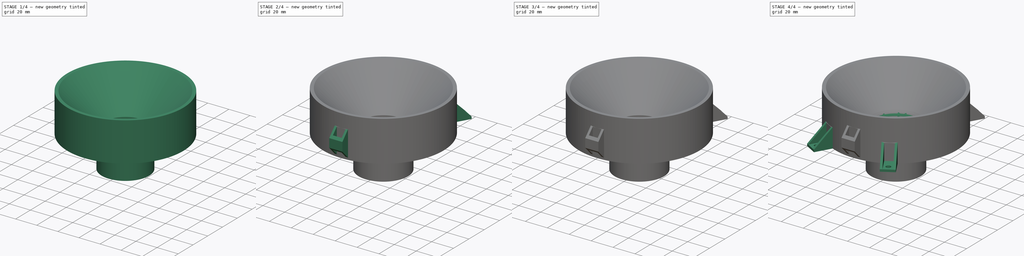
[diagram: build sequence overview — one tinted view per stage of 4, left to right]
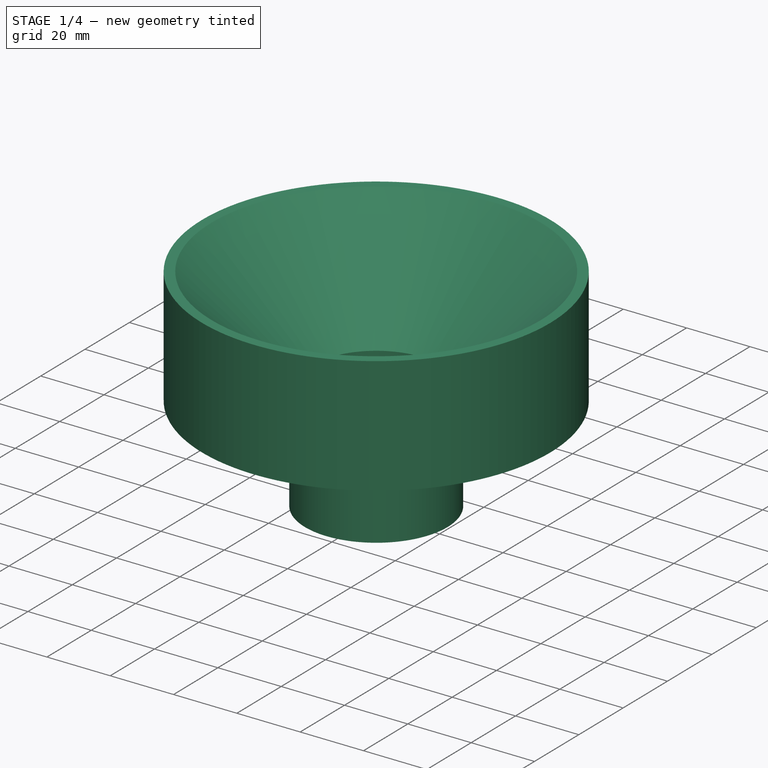
[diagram: stage 1 of 4 — iso view after this stage's code; geometry added in this stage tinted green]
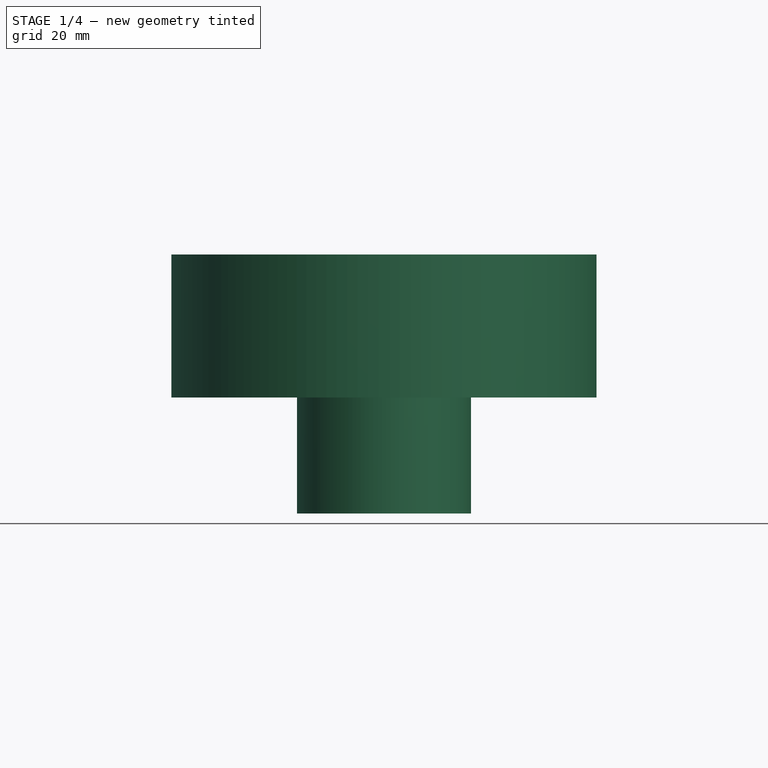
[diagram: stage 1 of 4 — front view after this stage's code; geometry added in this stage tinted green]
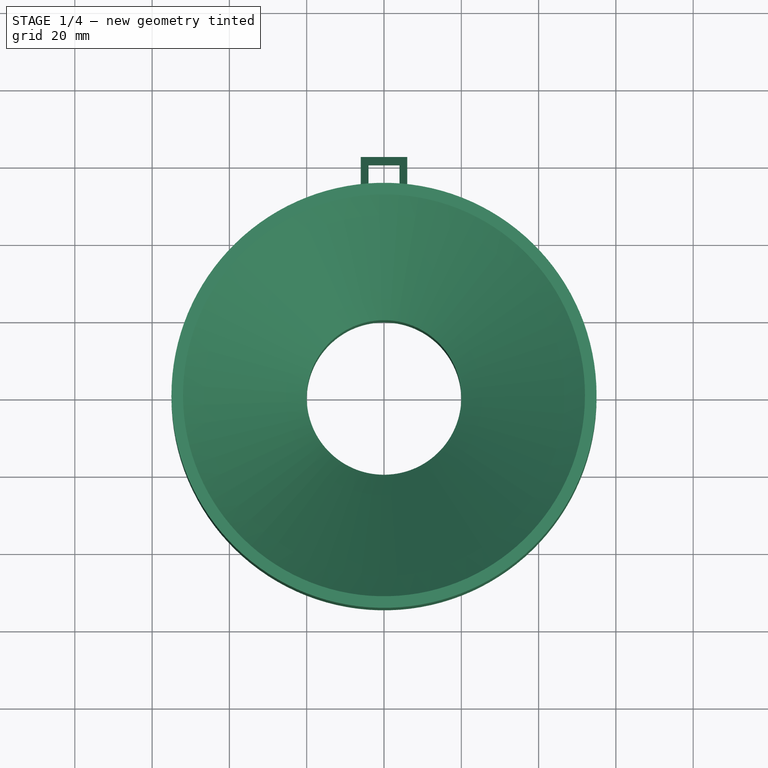
[diagram: stage 1 of 4 — top view after this stage's code; geometry added in this stage tinted green]
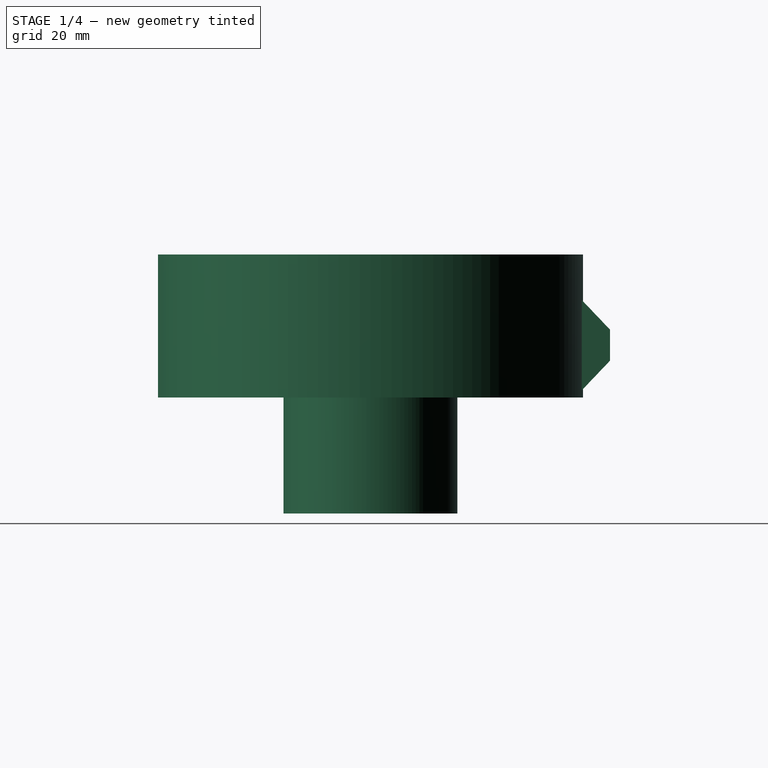
[diagram: stage 1 of 4 — right view after this stage's code; geometry added in this stage tinted green]
FCSTD DOCUMENT  (FreeCAD 0.19R24276 (Git))
Label: Trichter
License: All rights reserved
LicenseURL: http://en.wikipedia.org/wiki/All_rights_reserved
objects: Sketcher::SketchObject×6, PartDesign::PolarPattern×4, PartDesign::Pocket×3, PartDesign::Plane×2, PartDesign::Pad×2, PartDesign::Revolution×1, PartDesign::Fillet×1, PartDesign::Body×1
note: 27 computed .brp shape members not serialized (recipe doc carries the construction recipe); baked Part::Feature solids carry a one-line shape summary decoded from their .brp

FEATURE [Sketcher::SketchObject] Sketch
  FullyConstrained = true
  MapMode = 5
  Placement = pos=(0,0,0) rot=(1,0,0;1.5708rad)
  Support = -> [XZ_Plane]
  sketch-geometry (9):
    g0: LineSegment StartX=20 StartY=0 StartZ=0 EndX=20 EndY=5 EndZ=0
    g1: LineSegment StartX=55 StartY=37 StartZ=0 EndX=55 EndY=0 EndZ=0
    g2: LineSegment StartX=55 StartY=0 StartZ=0 EndX=20 EndY=0 EndZ=0
    g3: LineSegment StartX=20 StartY=5 StartZ=0 EndX=52 EndY=37 EndZ=0
    g4: LineSegment StartX=52 StartY=37 StartZ=0 EndX=55 EndY=37 EndZ=0
    g5: LineSegment StartX=20 StartY=5 StartZ=0 EndX=20 EndY=-30 EndZ=0
    g6: LineSegment StartX=20 StartY=-30 StartZ=0 EndX=22.5 EndY=-30 EndZ=0
    g7: LineSegment StartX=22.5 StartY=-30 StartZ=0 EndX=22.5 EndY=0 EndZ=0
    g8: LineSegment StartX=22.5 StartY=0 StartZ=0 EndX=55 EndY=0 EndZ=0
  constraints (26):
    c: PointOnObject(g0,g-1)
    c: Vertical(g0)
    c: PointOnObject(g1,g-1)
    c: Vertical(g1)
    c: Coincident(g1,g2)
    c: Coincident(g2,g0)
    c: DistanceX(g-1,g0) = 20
    c: DistanceY(g0,g0) = 5
    c: Coincident(g0,g3)
    c: Coincident(g3,g4)
    c: Coincident(g4,g1)
    c: Horizontal(g4)
    c: DistanceX(g3,g1) = 3
    c: DistanceX(g2,g2) = 35
    c: Angle(g2,g3) = 0.785398
    c: Coincident(g5,g3)
    c: Vertical(g5)
    c: Coincident(g5,g6)
    c: Horizontal(g6)
    c: Coincident(g6,g7)
    c: PointOnObject(g7,g2)
    c: Vertical(g7)
    c: Coincident(g7,g8)
    c: Coincident(g8,g1)
    c: DistanceX(g-1,g6) = 22.5
    c: DistanceY(g7,g7) = 30
FEATURE [PartDesign::Revolution] Revolution
  Angle = 360
  Axis = (0,2e-16,1)
  Base = (0,0,0)
  Placement = pos=(0,0,0) rot=(1,0,0;1.5708rad)
  Profile = -> Sketch
  ReferenceAxis = -> Sketch [V_Axis]
  Reversed = true
FEATURE [PartDesign::Plane] DatumPlane
  Length = 145.71
  MapMode = 5
  Placement = pos=(0,0,0) rot=(0.57735,0.57735,0.57735;2.0944rad)
  ResizeMode = 0
  Support = -> [YZ_Plane]
  Width = 85.4666
FEATURE [Sketcher::SketchObject] Sketch002
  FullyConstrained = true
  MapMode = 5
  Placement = pos=(0,0,0) rot=(0.57735,0.57735,0.57735;2.0944rad)
  Support = -> [DatumPlane]
  sketch-geometry (4):
    g0: LineSegment StartX=53 StartY=0.1 StartZ=0 EndX=62 EndY=9.55 EndZ=0
    g1: LineSegment StartX=62 StartY=9.55 StartZ=0 EndX=62 EndY=17.55 EndZ=0
    g2: LineSegment StartX=62 StartY=17.55 StartZ=0 EndX=53 EndY=27 EndZ=0
    g3: LineSegment StartX=53 StartY=27 StartZ=0 EndX=53 EndY=0.1 EndZ=0
  constraints (13):
    c: Coincident(g0,g1)
    c: Vertical(g1)
    c: Coincident(g1,g2)
    c: Coincident(g2,g3)
    c: Coincident(g3,g0)
    c: Vertical(g3)
    c: Equal(g2,g0)
    c: DistanceX(g-1,g0) = 53
    c: DistanceX(g-1,g0) = 62
    c: DistanceY(g1,g1) = 8
    c: DistanceY(g-1,g2) = 27
    c: DistanceY(g-1,g0) = 0.1
    c: Angle(g3,g2) = 0.761013
FEATURE [PartDesign::Pad] Pad
  BaseFeature = -> Revolution
  Direction = (1,1,1)
  Length = 12
  Length2 = 100
  Midplane = true
  Placement = pos=(0,0,0) rot=(1,0,0;1.5708rad)
  Profile = -> Sketch002
  Type = 0
FEATURE [Sketcher::SketchObject] Sketch003
  FullyConstrained = true
  MapMode = 5
  Support = -> [XY_Plane]
  sketch-geometry (7):
    g0: LineSegment StartX=0 StartY=0 StartZ=0 EndX=3.5e-15 EndY=57.51 EndZ=0
    g1: LineSegment StartX=-4 StartY=60.01 StartZ=0 EndX=4 EndY=60.01 EndZ=0
    g2: LineSegment StartX=4 StartY=60.01 StartZ=0 EndX=4 EndY=55.01 EndZ=0
    g3: LineSegment StartX=4 StartY=55.01 StartZ=0 EndX=-4 EndY=55.01 EndZ=0
    g4: LineSegment StartX=-4 StartY=55.01 StartZ=0 EndX=-4 EndY=60.01 EndZ=0
    g5: LineSegment StartX=4 StartY=60.01 StartZ=0 EndX=-4 EndY=55.01 EndZ=0
    g6: LineSegment StartX=-4 StartY=60.01 StartZ=0 EndX=4 EndY=55.01 EndZ=0
  constraints (19):
    c: Coincident(g0,g-1)
    c: Coincident(g1,g2)
    c: Coincident(g2,g3)
    c: Coincident(g3,g4)
    c: Coincident(g4,g1)
    c: Coincident(g5,g1)
    c: Coincident(g5,g3)
    c: Coincident(g6,g1)
    c: Coincident(g6,g2)
    c: PointOnObject(g0,g5)
    c: PointOnObject(g0,g6)
    c: Angle(g-1,g0) = 1.5708
    c: Equal(g6,g5)
    c: Parallel(g2,g0)
    c: Perpendicular(g2,g3)
    c: Perpendicular(g4,g3)
    c: Distance(g1) = 8
    c: Distance(g0) = 57.51
    c: Distance(g2) = 5
FEATURE [PartDesign::Pocket] Pocket
  BaseFeature = -> Pad
  Length = 5
  Length2 = 100
  Placement = pos=(0,0,0) rot=(1,0,0;1.5708rad)
  Profile = -> Sketch003
  Reversed = true
  Type = 1
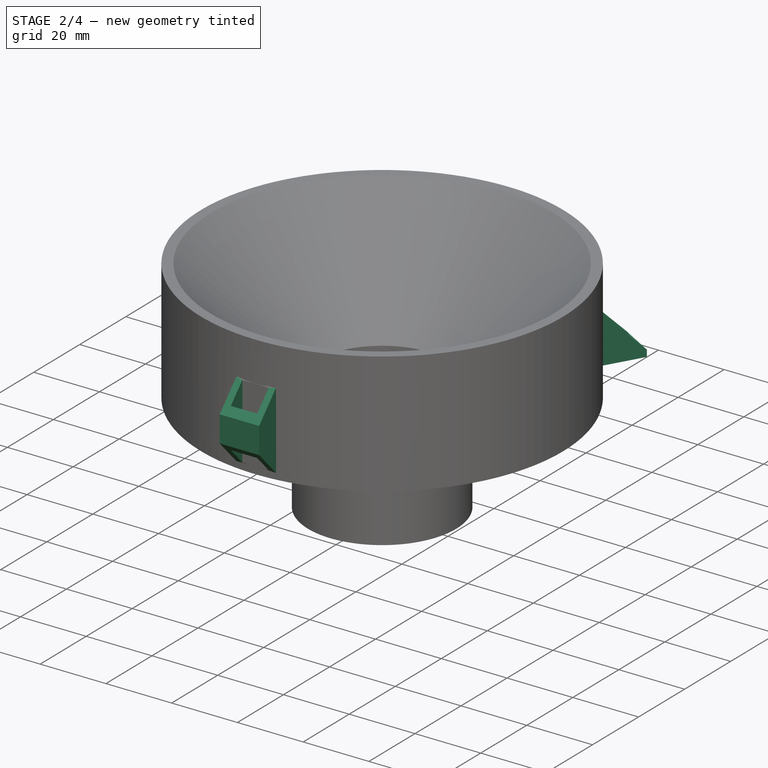
[diagram: stage 2 of 4 — iso view after this stage's code; geometry added in this stage tinted green]
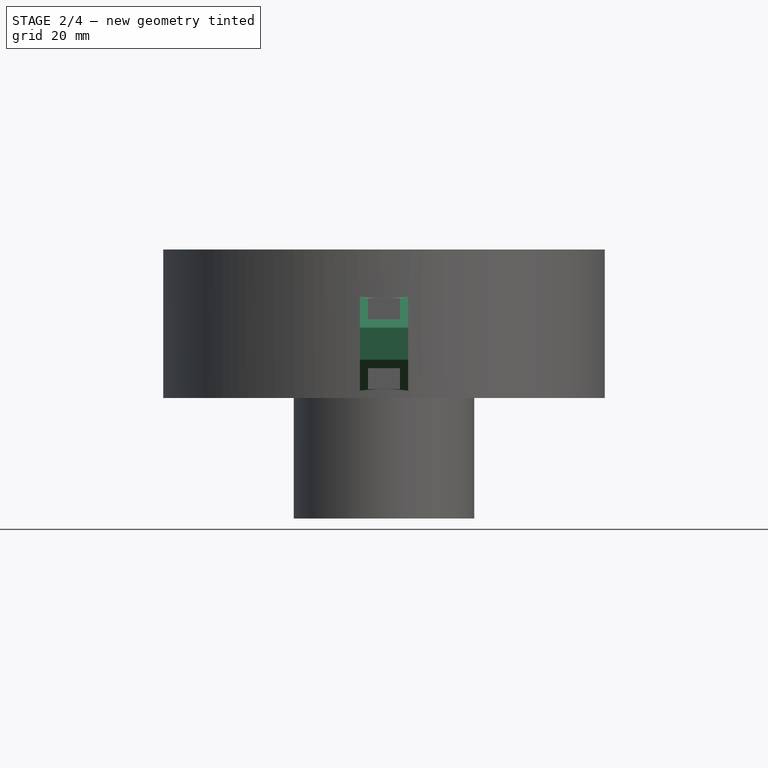
[diagram: stage 2 of 4 — front view after this stage's code; geometry added in this stage tinted green]
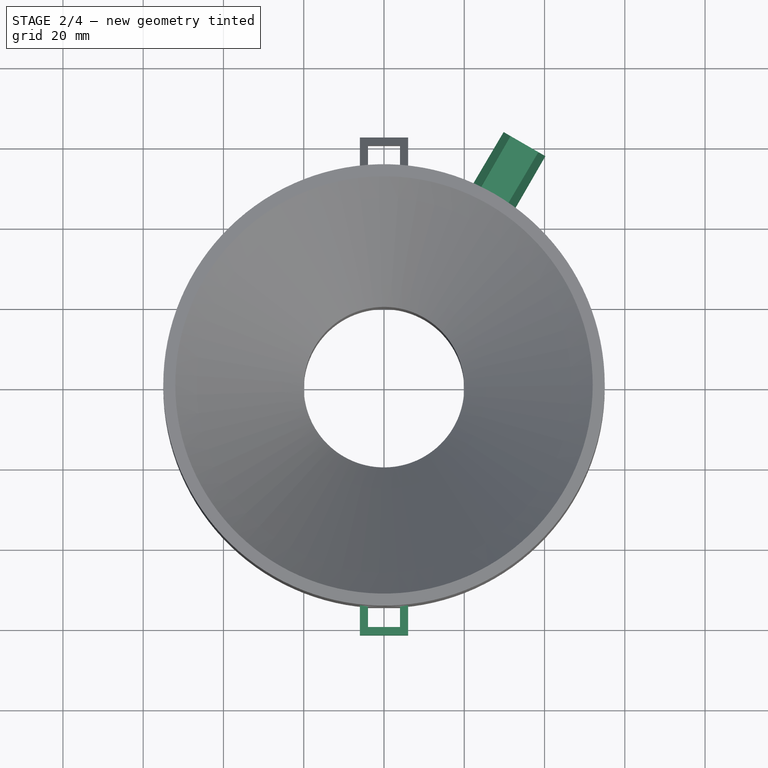
[diagram: stage 2 of 4 — top view after this stage's code; geometry added in this stage tinted green]
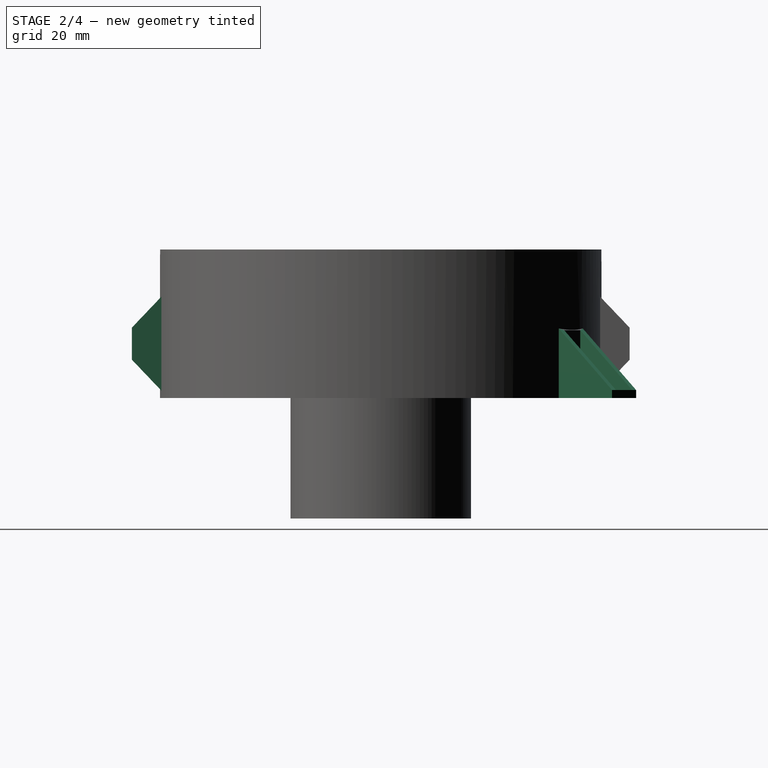
[diagram: stage 2 of 4 — right view after this stage's code; geometry added in this stage tinted green]
FEATURE [PartDesign::PolarPattern] PolarPattern001
  Angle = 360
  Axis = -> Z_Axis
  BaseFeature = -> Pocket
  Occurrences = 2
  Originals = -> [Pad,Pocket]
  Placement = pos=(0,0,0) rot=(1,0,0;1.5708rad)
FEATURE [PartDesign::Plane] DatumPlane001
  AttachmentOffset = pos=(0,0,0) rot=(0,1,0;1.0472rad)
  Length = 186.237
  MapMode = 5
  Placement = pos=(0,0,0) rot=(0.774597,0.447214,0.447214;1.82348rad)
  ResizeMode = 0
  Support = -> [XZ_Plane]
  Width = 88.0411
FEATURE [Sketcher::SketchObject] Sketch004
  FullyConstrained = true
  MapMode = 5
  Placement = pos=(0,0,0) rot=(0.774597,0.447214,0.447214;1.82348rad)
  Support = -> [DatumPlane001]
  sketch-geometry (4):
    g0: LineSegment StartX=52 StartY=0 StartZ=0 EndX=70 EndY=0 EndZ=0
    g1: LineSegment StartX=70 StartY=0 StartZ=0 EndX=70 EndY=2 EndZ=0
    g2: LineSegment StartX=70 StartY=2 StartZ=0 EndX=52 EndY=20 EndZ=0
    g3: LineSegment StartX=52 StartY=20 StartZ=0 EndX=52 EndY=0 EndZ=0
  constraints (12):
    c: PointOnObject(g0,g-1)
    c: PointOnObject(g0,g-1)
    c: Coincident(g0,g1)
    c: Vertical(g1)
    c: Coincident(g1,g2)
    c: Coincident(g2,g3)
    c: Coincident(g3,g0)
    c: Vertical(g3)
    c: DistanceY(g1,g1) = 2
    c: DistanceX(g-1,g0) = 52
    c: Angle(g2,g0) = 0.785398
    c: DistanceX(g-1,g0) = 70
FEATURE [PartDesign::Pad] Pad001
  BaseFeature = -> PolarPattern001
  Direction = (1,1,1)
  Length = 12
  Length2 = 100
  Midplane = true
  Placement = pos=(0,0,0) rot=(1,0,0;1.5708rad)
  Profile = -> Sketch004
  Type = 0
FEATURE [Sketcher::SketchObject] Sketch005
  AttachmentOffset = pos=(0,0,2) rot=(0,0,1;0rad)
  FullyConstrained = true
  MapMode = 5
  Placement = pos=(0,0,2) rot=(0,0,1;0rad)
  Support = -> [XY_Plane]
  sketch-geometry (5):
    g0: LineSegment StartX=0 StartY=0 StartZ=0 EndX=35.5 EndY=61.4878 EndZ=0
    g1: LineSegment StartX=32.0359 StartY=63.4878 StartZ=0 EndX=38.9641 EndY=59.4878 EndZ=0
    g2: LineSegment StartX=38.9641 StartY=59.4878 StartZ=0 EndX=31.0141 EndY=45.718 EndZ=0
    g3: LineSegment StartX=31.0141 StartY=45.718 StartZ=0 EndX=24.0859 EndY=49.718 EndZ=0
    g4: LineSegment StartX=24.0859 StartY=49.718 StartZ=0 EndX=32.0359 EndY=63.4878 EndZ=0
  constraints (13):
    c: Coincident(g0,g-1)
    c: Coincident(g1,g2)
    c: Coincident(g2,g3)
    c: Coincident(g3,g4)
    c: Coincident(g4,g1)
    c: PointOnObject(g0,g1)
    c: Symmetric(g1,g1,g0)
    c: Symmetric(g2,g3,g0)
    c: Equal(g3,g1)
    c: Angle(g0,g-2) = 0.523599
    c: Distance(g1) = 8
    c: Distance(g-1,g0) = 71
    c: Distance(g-1,g3) = 55.1
FEATURE [PartDesign::Pocket] Pocket001
  BaseFeature = -> Pad001
  Length = 5
  Length2 = 100
  Placement = pos=(0,0,0) rot=(1,0,0;1.5708rad)
  Profile = -> Sketch005
  Reversed = true
  Type = 1
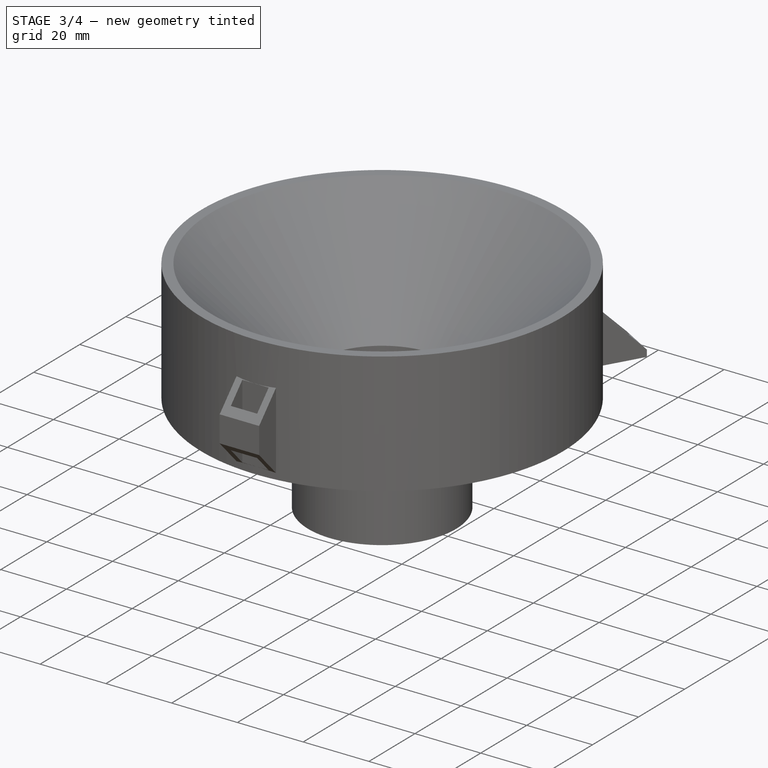
[diagram: stage 3 of 4 — iso view after this stage's code; geometry added in this stage tinted green]
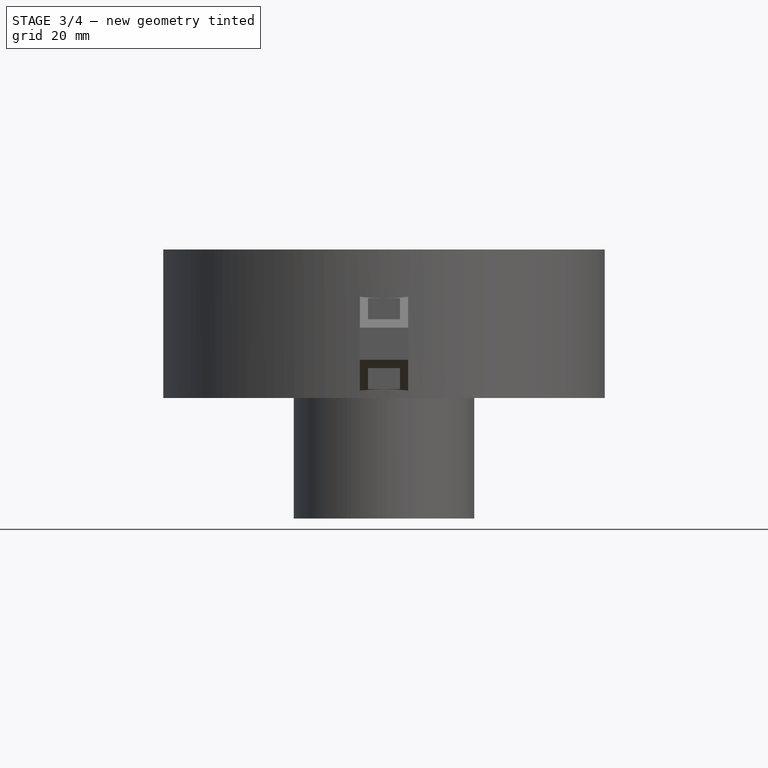
[diagram: stage 3 of 4 — front view after this stage's code; geometry added in this stage tinted green]
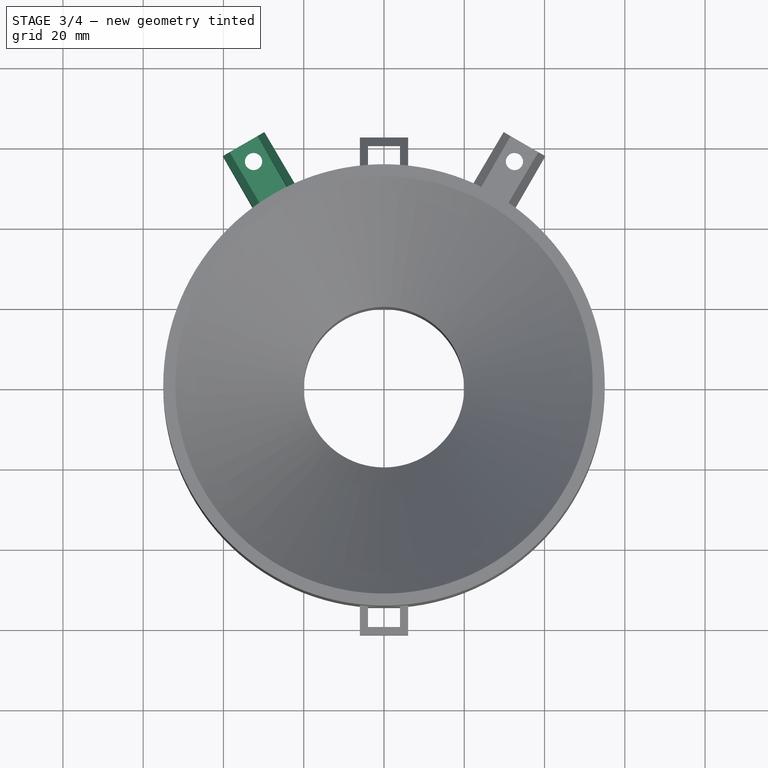
[diagram: stage 3 of 4 — top view after this stage's code; geometry added in this stage tinted green]
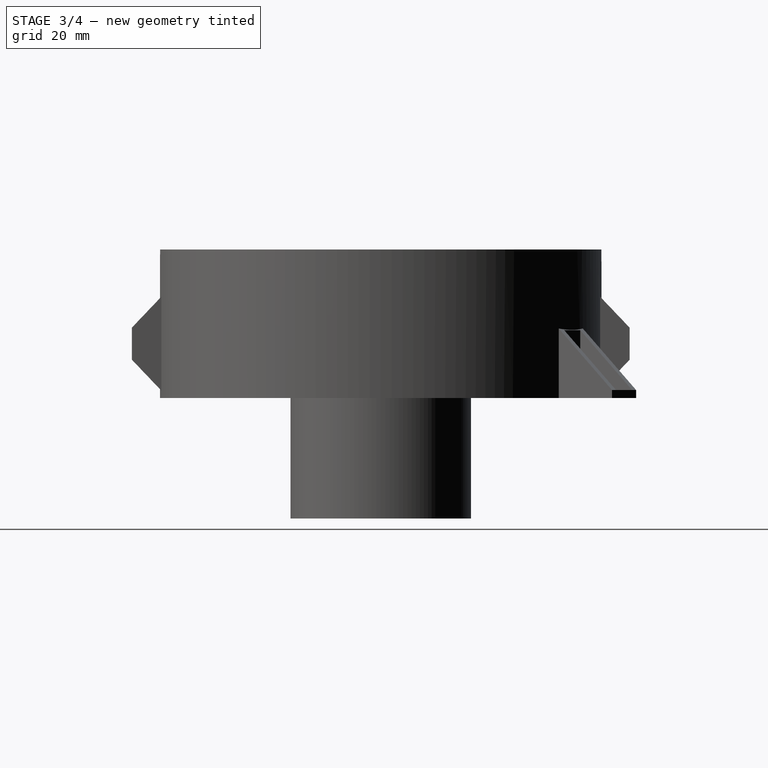
[diagram: stage 3 of 4 — right view after this stage's code; geometry added in this stage tinted green]
FEATURE [Sketcher::SketchObject] Sketch006
  FullyConstrained = true
  MapMode = 5
  Support = -> [XY_Plane]
  sketch-geometry (2):
    g0: LineSegment StartX=0 StartY=0 StartZ=0 EndX=32.5 EndY=56.2917 EndZ=0
    g1: Circle CenterX=32.5 CenterY=56.2917 CenterZ=0 NormalX=0 NormalY=0 NormalZ=1 AngleXU=0 Radius=2.15
  constraints (5):
    c: Coincident(g0,g-1)
    c: Coincident(g1,g0)
    c: Distance(g0) = 65
    c: Angle(g0,g-2) = 0.523599
    c: Diameter(g1) = 4.3
FEATURE [PartDesign::Pocket] Pocket002
  BaseFeature = -> Pocket001
  Length = 5
  Length2 = 100
  Placement = pos=(0,0,0) rot=(1,0,0;1.5708rad)
  Profile = -> Sketch006
  Reversed = true
  Type = 1
FEATURE [PartDesign::PolarPattern] PolarPattern002
  Angle = 60
  Axis = -> Z_Axis
  BaseFeature = -> Pocket002
  Occurrences = 2
  Originals = -> [Pad001,Pocket001,Pocket002]
  Placement = pos=(0,0,0) rot=(1,0,0;1.5708rad)
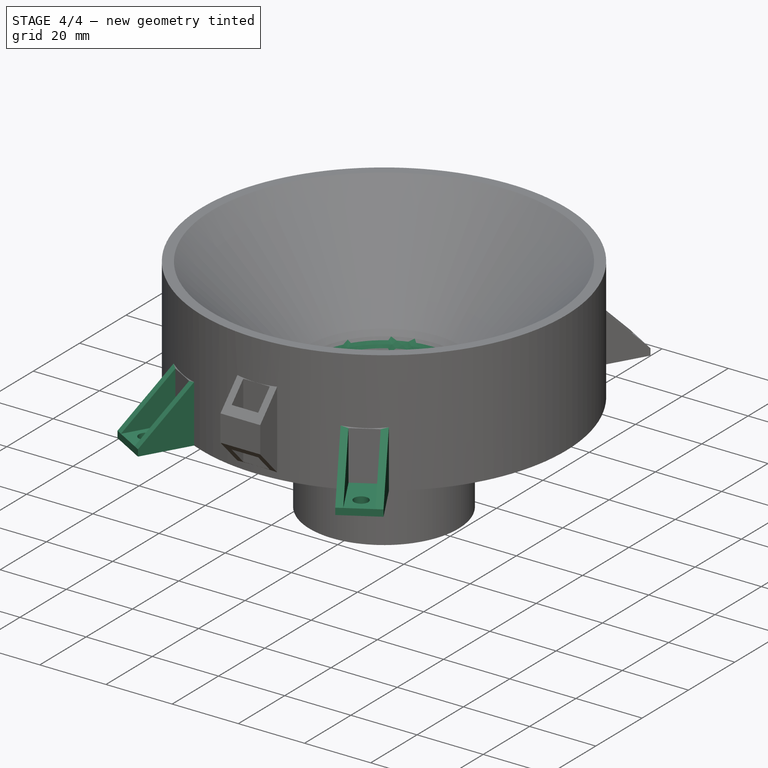
[diagram: stage 4 of 4 — iso view after this stage's code; geometry added in this stage tinted green]
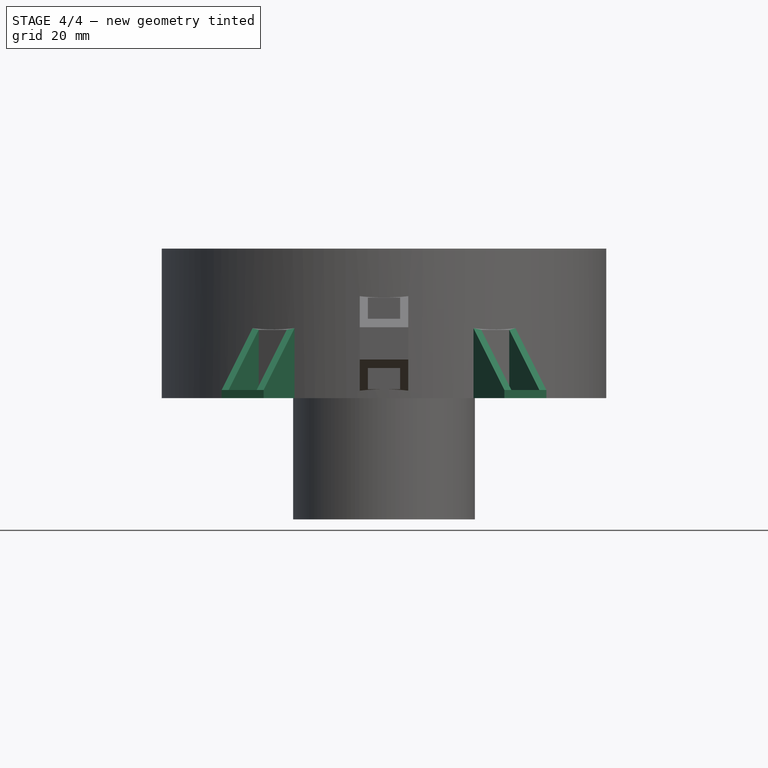
[diagram: stage 4 of 4 — front view after this stage's code; geometry added in this stage tinted green]
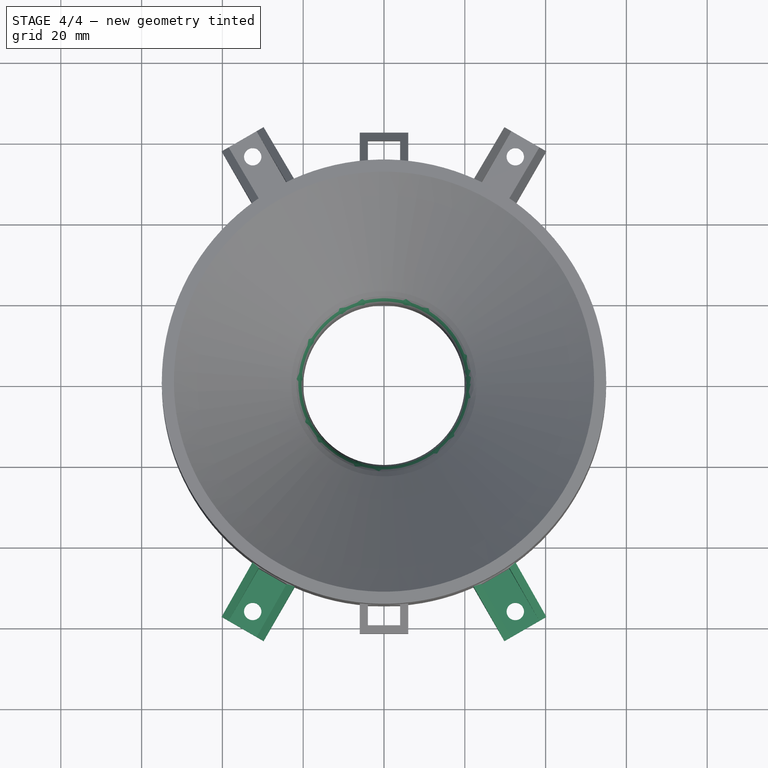
[diagram: stage 4 of 4 — top view after this stage's code; geometry added in this stage tinted green]
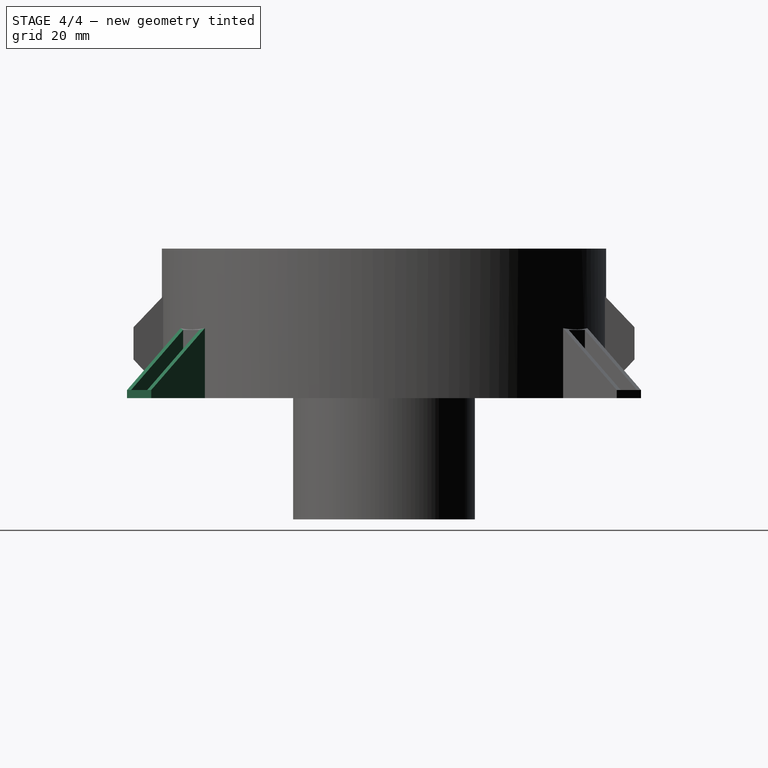
[diagram: stage 4 of 4 — right view after this stage's code; geometry added in this stage tinted green]
FEATURE [PartDesign::PolarPattern] PolarPattern003
  Angle = 360
  Axis = -> Z_Axis
  BaseFeature = -> PolarPattern002
  Occurrences = 2
  Originals = -> [Pad001,Pocket001,Pocket002]
  Placement = pos=(0,0,0) rot=(1,0,0;1.5708rad)
FEATURE [PartDesign::PolarPattern] PolarPattern004
  Angle = 240
  Axis = -> Z_Axis
  BaseFeature = -> PolarPattern003
  Occurrences = 2
  Originals = -> [Pad001,Pocket001,Pocket002]
  Placement = pos=(0,0,0) rot=(1,0,0;1.5708rad)
FEATURE [PartDesign::Fillet] Fillet
  Base = -> PolarPattern004 [Edge1]
  BaseFeature = -> PolarPattern004
  Placement = pos=(0,0,0) rot=(1,0,0;1.5708rad)
  Radius = 10
  SupportTransform = false
FEATURE [PartDesign::Body] Body
  Group = -> [Sketch,Revolution,DatumPlane,Sketch002,Pad,Sketch003,Pocket,PolarPattern001,DatumPlane001,Sketch004,Pad001,Sketch005,Pocket001,Sketch006,Pocket002,PolarPattern002,PolarPattern003,PolarPattern004,Fillet]
  Origin = -> Origin
  Tip = -> Fillet
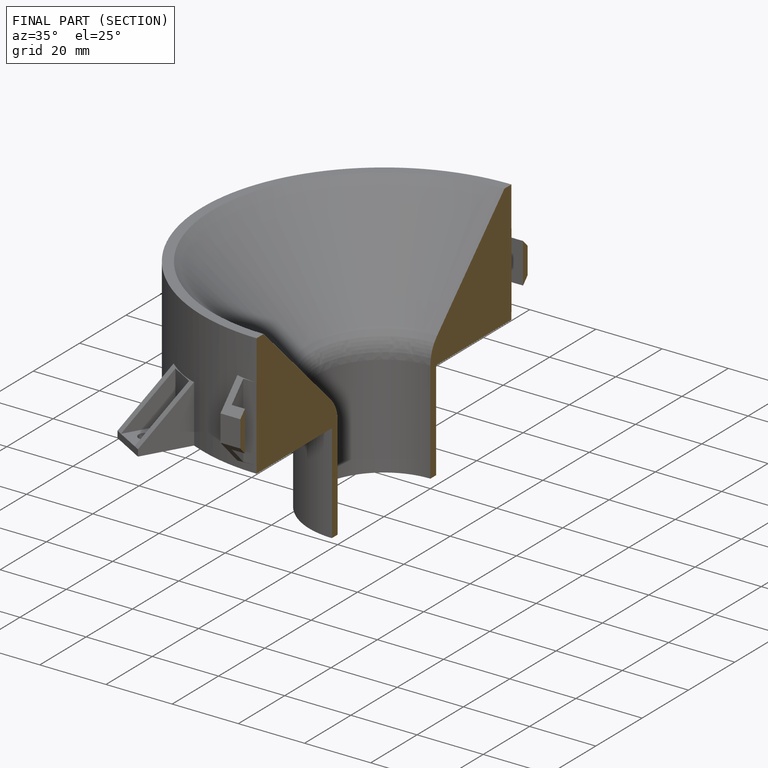
[diagram: finished part — half-section view (interior)]
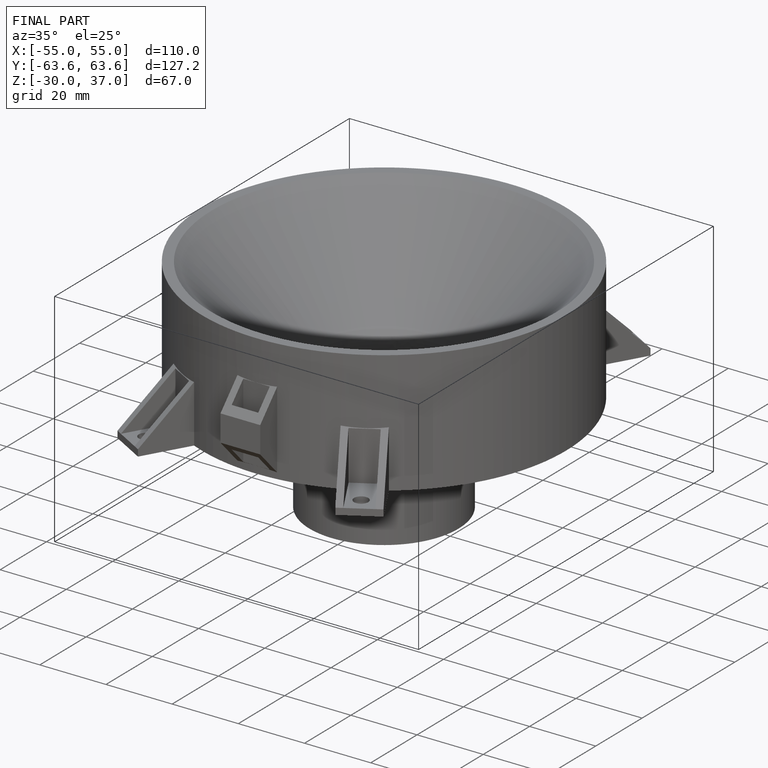
[diagram: finished part — iso view with bounding-box wireframe]
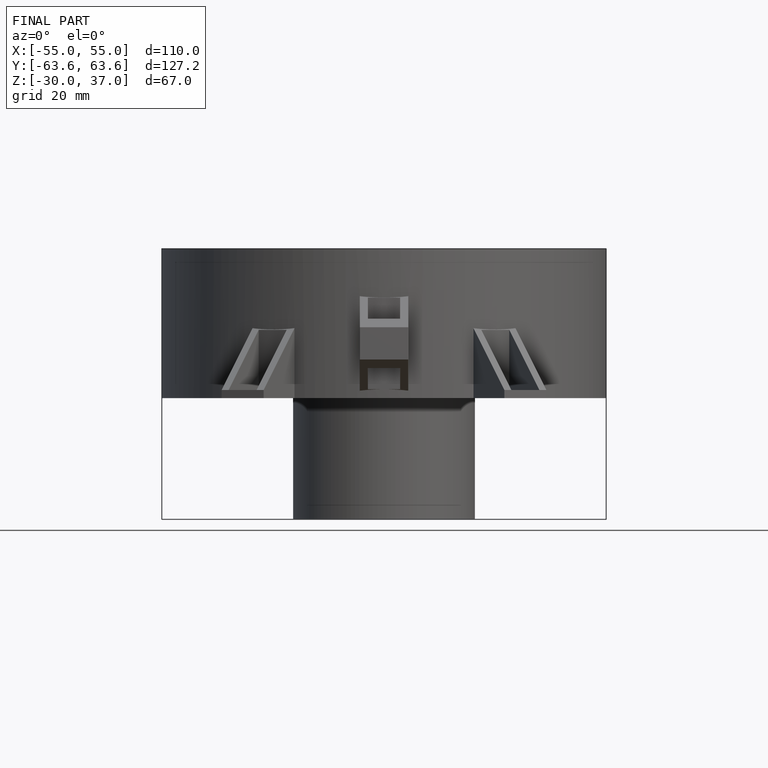
[diagram: finished part — front view with bounding-box wireframe]
